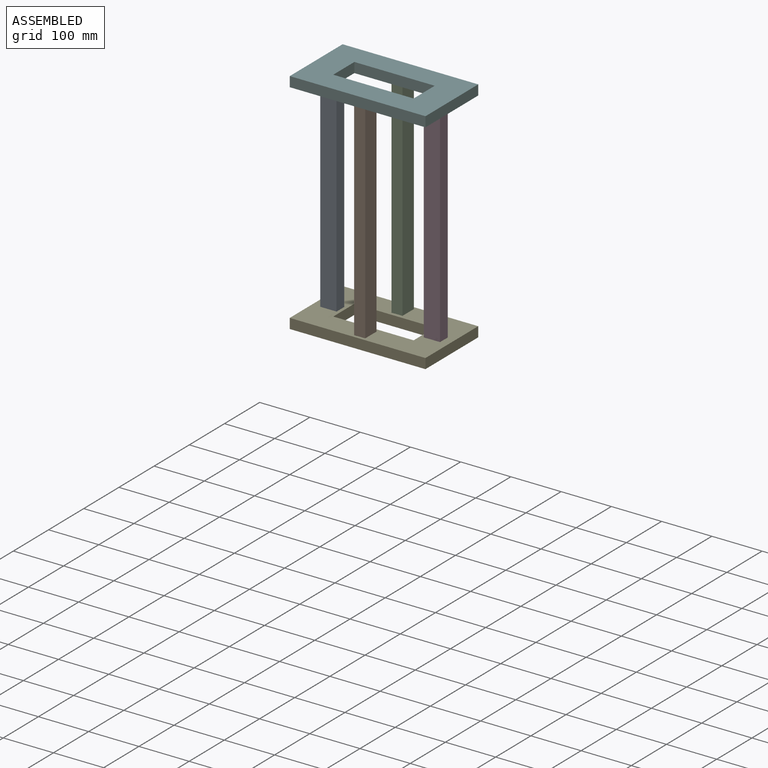
[diagram: assembled view]
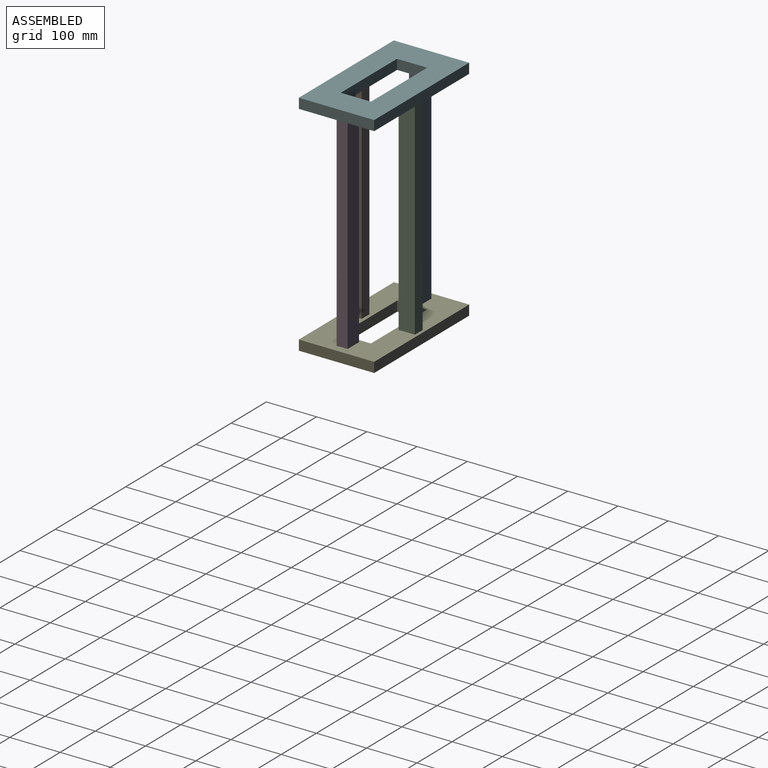
[diagram: assembled view, second angle]
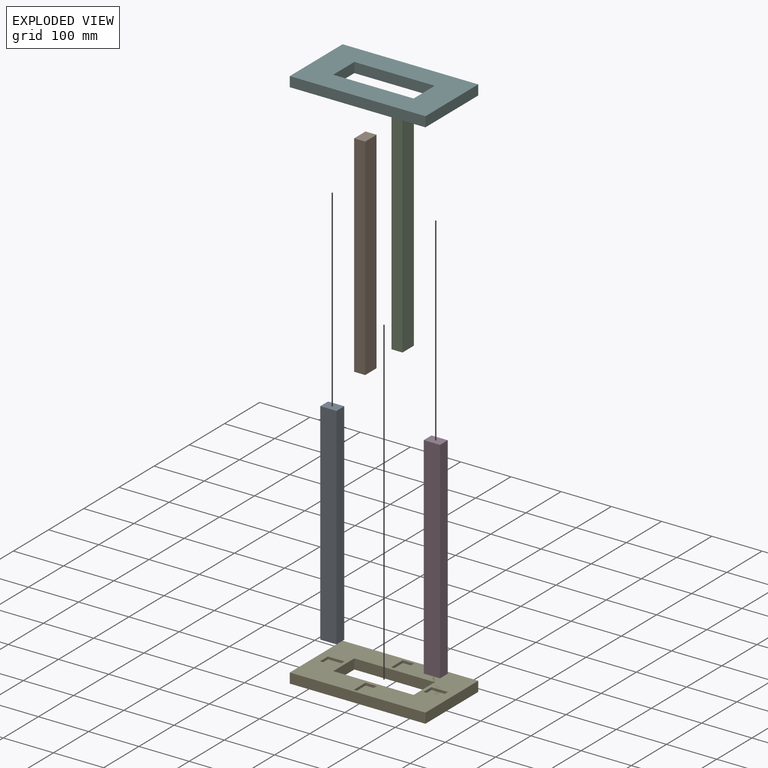
[diagram: exploded view]
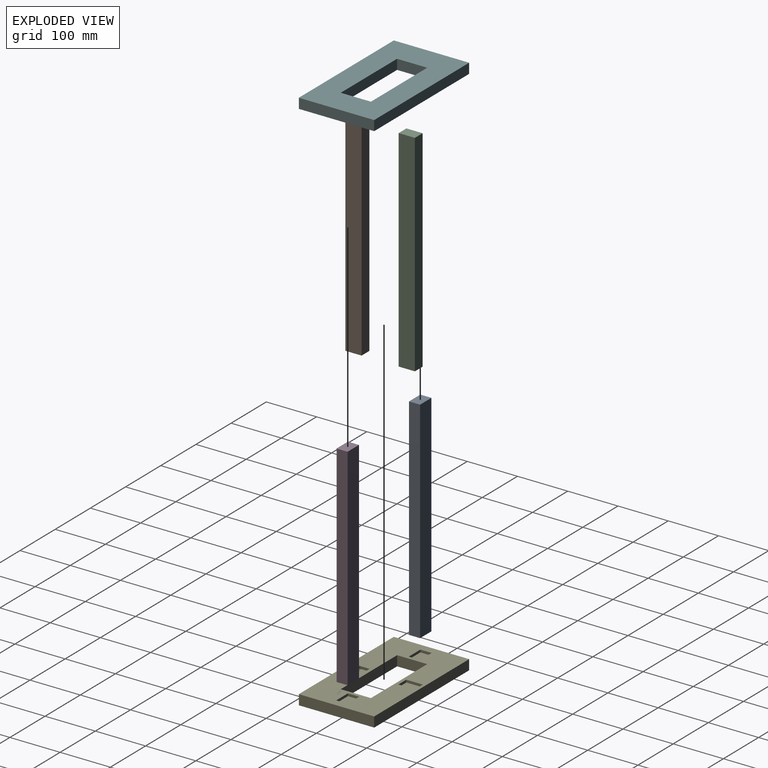
[diagram: exploded view, second angle]
ASSEMBLY  parts=6 mates=5
PART A: 6 faces, bbox 22x420x32.3 mm
  f0: plane 420x32.25mm, normal (1,0,0), area 13545mm2, adj f1,f3,f4,f5
  f1: plane 420x22mm, normal (0,0,1), area 9240mm2, adj f0,f2,f4,f5
  f2: plane 420x32.25mm, normal (-1,0,0), area 13545mm2, adj f1,f3,f4,f5
  f3: plane 420x22mm, normal (0,0,-1), area 9240mm2, adj f0,f2,f4,f5
  f4: plane 32.25x22mm, normal (0,-1,0), area 709.5mm2, adj f0,f1,f2,f3
  f5: plane 32.25x22mm, normal (0,1,0), area 709.5mm2, adj f0,f1,f2,f3
PART B: same geometry as A
PART C: same geometry as A
PART D: same geometry as A
PART E: 30 faces, bbox 270x150x20 mm
  f0: plane 270x150mm, normal (0,0,1), area 27930mm2, adj f1,f2,f3,f4,f5,f6,f7,f8
  f1: plane 160x20mm, normal (0,-1,0), area 3200mm2, adj f0,f2,f8,f9
  f2: plane 60x20mm, normal (-1,0,0), area 1200mm2, adj f0,f1,f3,f9
  f3: plane 160x20mm, normal (0,1,0), area 3200mm2, adj f0,f2,f8,f9
  f4: plane 150x20mm, normal (1,0,0), area 3000mm2, adj f0,f5,f7,f9
  f5: plane 270x20mm, normal (0,1,0), area 5400mm2, adj f0,f4,f6,f9
  f6: plane 150x20mm, normal (-1,0,0), area 3000mm2, adj f0,f5,f7,f9
  f7: plane 270x20mm, normal (0,-1,0), area 5400mm2, adj f0,f4,f6,f9
  f8: plane 60x20mm, normal (1,0,0), area 1200mm2, adj f0,f1,f3,f9
  f9: plane 270x150mm, normal (0,0,-1), area 30900mm2, adj f1,f2,f3,f4,f5,f6,f7,f8
  f10: plane 33x5mm, normal (1,0,0), area 165mm2, adj f0,f11,f13,f14
  f11: plane 22.5x5mm, normal (0,1,0), area 112.5mm2, adj f0,f10,f12,f14
  f12: plane 33x5mm, normal (-1,0,0), area 165mm2, adj f0,f11,f13,f14
  f13: plane 22.5x5mm, normal (0,-1,0), area 112.5mm2, adj f0,f10,f12,f14
  f14: plane 33x22.5mm, normal (0,0,1), area 742.5mm2, adj f10,f11,f12,f13
  f15: plane 22.5x5mm, normal (-1,0,0), area 112.5mm2, adj f0,f16,f18,f19
  f16: plane 33x5mm, normal (0,-1,0), area 165mm2, adj f0,f15,f17,f19
  f17: plane 22.5x5mm, normal (1,0,0), area 112.5mm2, adj f0,f16,f18,f19
  f18: plane 33x5mm, normal (0,1,0), area 165mm2, adj f0,f15,f17,f19
  f19: plane 33x22.5mm, normal (0,0,1), area 742.5mm2, adj f15,f16,f17,f18
  f20: plane 33x5mm, normal (-1,0,0), area 165mm2, adj f0,f21,f23,f24
  f21: plane 22.5x5mm, normal (0,-1,0), area 112.5mm2, adj f0,f20,f22,f24
  f22: plane 33x5mm, normal (1,0,0), area 165mm2, adj f0,f21,f23,f24
  f23: plane 22.5x5mm, normal (0,1,0), area 112.5mm2, adj f0,f20,f22,f24
  f24: plane 33x22.5mm, normal (0,0,1), area 742.5mm2, adj f20,f21,f22,f23
  f25: plane 33x5mm, normal (0,-1,0), area 165mm2, adj f0,f26,f28,f29
  f26: plane 22.5x5mm, normal (1,0,0), area 112.5mm2, adj f0,f25,f27,f29
  f27: plane 33x5mm, normal (0,1,0), area 165mm2, adj f0,f26,f28,f29
  f28: plane 22.5x5mm, normal (-1,0,0), area 112.5mm2, adj f0,f25,f27,f29
  f29: plane 33x22.5mm, normal (0,0,1), area 742.5mm2, adj f25,f26,f27,f28
PART F: same geometry as E
PLACE A rot(axis=(-0.58,-0.58,0.58),120deg) t=(-95.22,0,-61.94)mm
PLACE B rot(axis=(0,0.71,-0.71),180deg) t=(7.78,-53,-56.94)mm
PLACE C rot(axis=(-1,0,0),90deg) t=(7.78,53,-56.94)mm
PLACE D rot(axis=(-0.58,0.58,-0.58),120deg) t=(110.78,0,-56.94)mm
PLACE E t=(7.78,0,-286.94)mm
PLACE F rot(axis=(0,1,0),180deg) t=(7.78,0,168.06)mm fixed
MATE fastened D.f4 <-> F.f29  axis (0,0,1) through (110.78,0,153.06)mm
MATE fastened E.f0 <-> B.f5  axis (0,0,1) through (7.78,-53,-266.94)mm
MATE fastened A.f4 <-> F.f0  axis (0,0,1) through (-95.22,0,148.06)mm
MATE fastened B.f4 <-> F.f14  axis (0,0,1) through (7.78,-53,153.06)mm
MATE fastened C.f4 <-> F.f24  axis (0,0,1) through (7.78,53,153.06)mm
